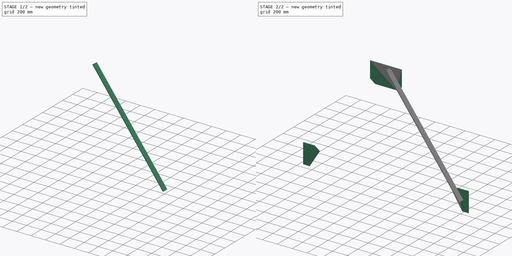
[diagram: build sequence overview — one tinted view per stage of 2, left to right]
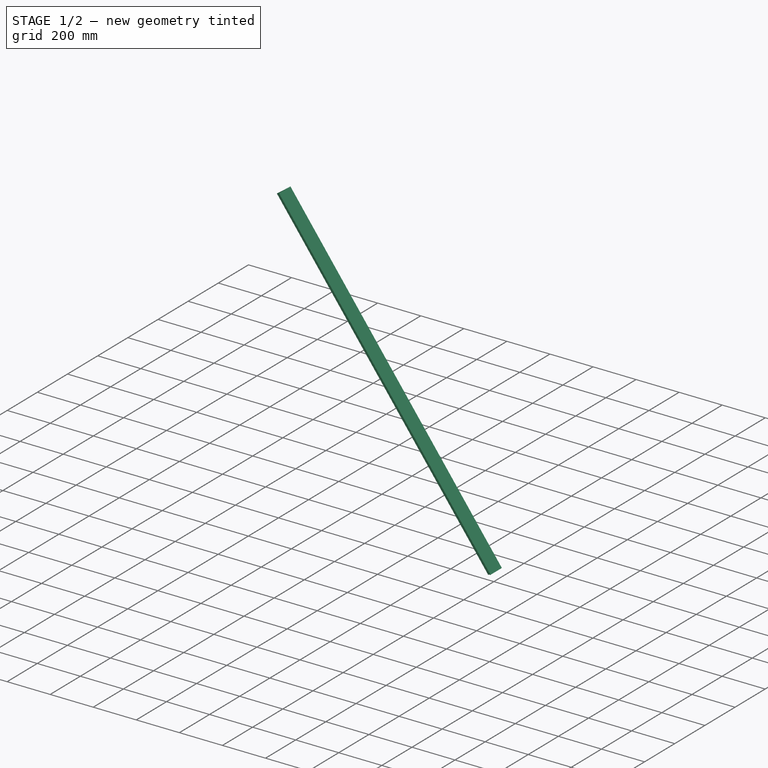
[diagram: stage 1 of 2 — iso view after this stage's code; geometry added in this stage tinted green]
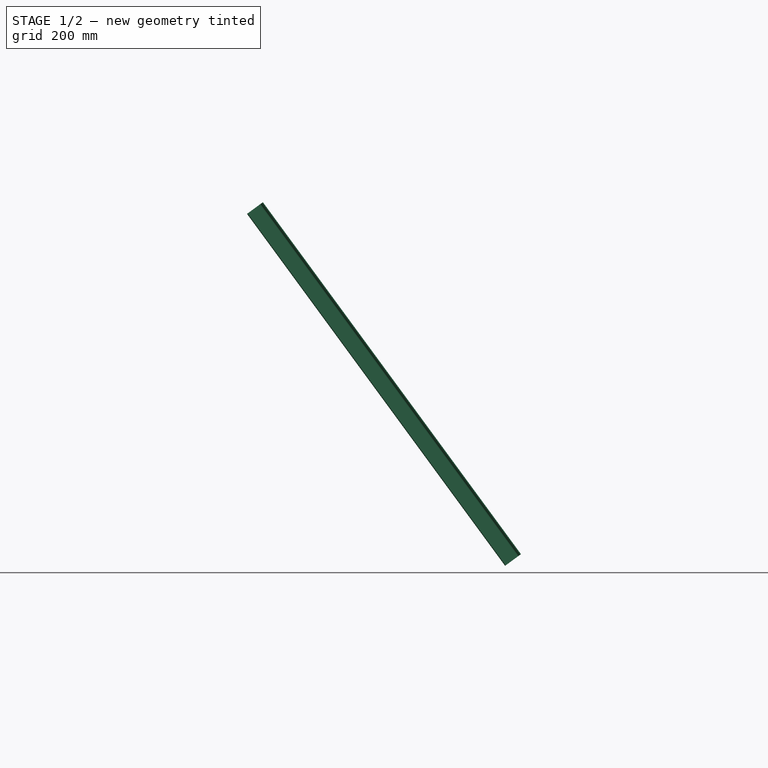
[diagram: stage 1 of 2 — front view after this stage's code; geometry added in this stage tinted green]
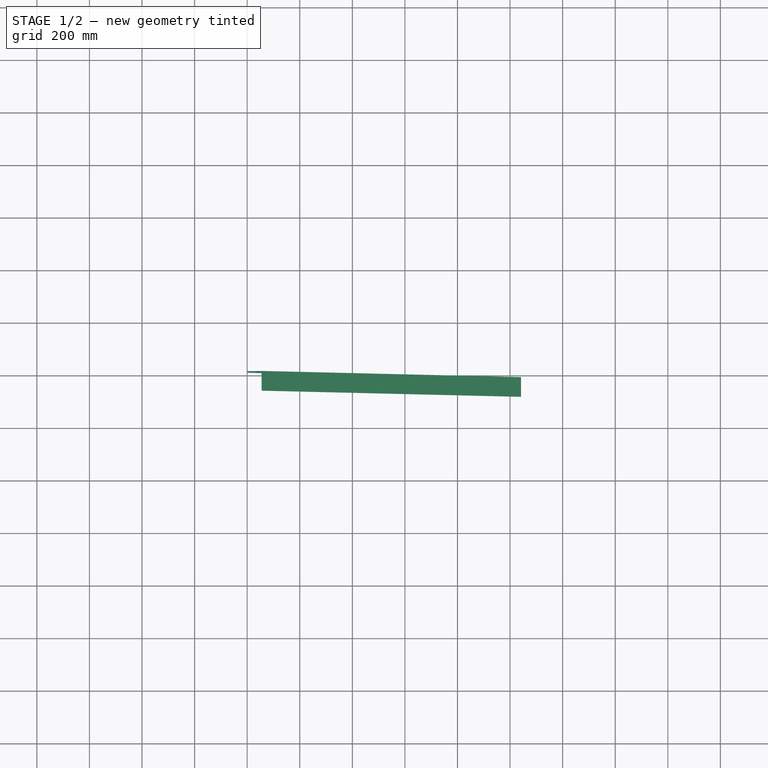
[diagram: stage 1 of 2 — top view after this stage's code; geometry added in this stage tinted green]
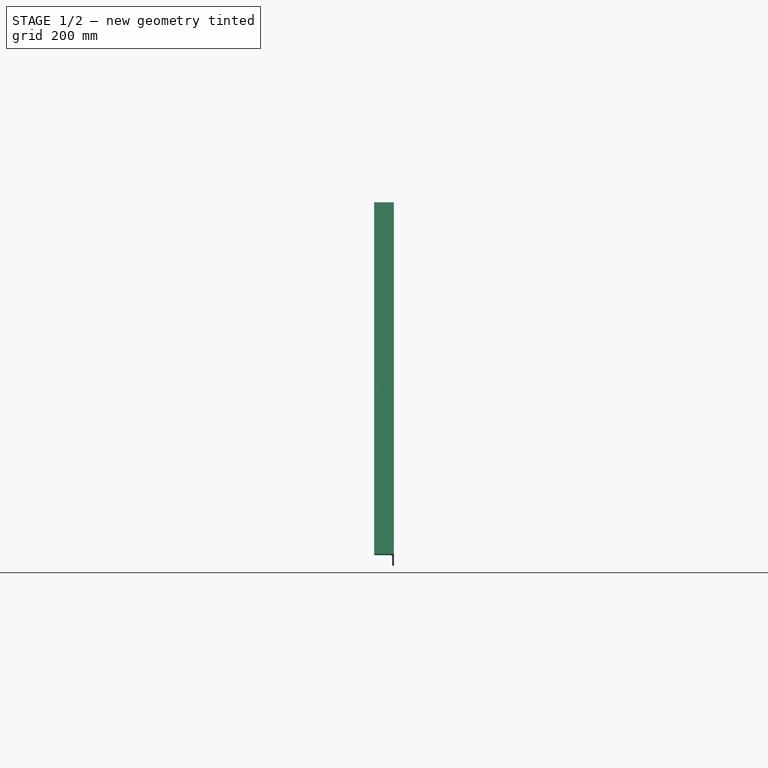
[diagram: stage 1 of 2 — right view after this stage's code; geometry added in this stage tinted green]
FCSTD DOCUMENT  (FreeCAD 0.21R33771 (Git))
Label: steelBrace03
License: All rights reserved
objects: Sketcher::SketchObject×1, Part::Extrusion×1, Part::FeaturePython×1, Spreadsheet::Sheet×1, Part::Mirroring×1, App::Part×1
note: 4 computed .brp shape members not serialized (recipe doc carries the construction recipe); baked Part::Feature solids carry a one-line shape summary decoded from their .brp

FEATURE [Part::FeaturePython] AngleSteel  # WARN: FeaturePython — macro-defined, semantics opaque (R4)
  A = 75
  B = 75
  L = 1660.11
  Placement = pos=(-1011.3,-43.5,120.961) rot=(0,1,0;0.632749rad)
  Solid = true
  g0 = 7.85
  mass = 11.3721
  sface = 0
  size = 10
  standard = SS_Equal
  t = 6
  expr: .Placement.Base.x = Spreadsheet.Lx
  expr: .Placement.Base.y = -Spreadsheet.B0 / 2 - 6
  expr: .Placement.Base.z = Spreadsheet.Ly
  expr: .Placement.Rotation.Angle = Spreadsheet.k0
  expr: L = Spreadsheet.LL - 200
FEATURE [Spreadsheet::Sheet] Spreadsheet  label="STB03"
  cells = A2='W0; B2(W0)=2200; A3='H0; B3(H0)=1500; A4='k0; B4(k0)==90 ° - atan(H0 / (W0 / 2)); A5='La; B5(La)=300; A6='Lb; B6(Lb)==La - 150; A7='LL; B7(LL)==sqrt((W0 / 2) ^ 2 + H0 ^ 2); A8='Lc; B8(Lc)=10; A9='Lx; B9(Lx)==-W0 / 2 + Lb * sin(k0); A10='Ly; B10(Ly)==Lb * cos(k0); A11='B0; B11(B0)=75; A13='20x20x3; B13=20; A14='25x25x3; B14=25; A15='30x30x3; B15=30; A16='30x30x5; B16=30; A17='40x40x3; B17=40; A18='40x40x5; B18=40; A19='50x50x4; B19=50; A20='50x50x6; B20=50; A21='65x65x8; B21=65; A22='65x65x9; B22=65; A23='75x75x6; B23=75; A24='75x75x9; B24=75; A25='75x75x12; B25=75; A26='90x90x7; B26=90; A27='90x90x10; B27=90; A28='90x90x13; B28=90; A29='100x100x7; B29=100; A30='100x100x10; B30=100; A31='100x100x13; B31=100; A32='130x130x9; B32=130; A33='130x130x12; B33=130; A34='130x130x15; B34=130; A35='150x150x12; B35=150; A36='150x150x15; B36=150; A37='150x150x19; B37=150; A38='200x200x15; B38=200; A39='200x200x20; B39=200; A40='200x200x25; B40=200
FEATURE [Part::Mirroring] Mirror  label="AngleSteel (mirrored)"
  Base = (0,-6,2000)
  Normal = (1,0,0)
  Source = -> AngleSteel
FEATURE [App::Part] Part  label="steelBrace03"
  Group = -> [AngleSteel,Mirror,Spreadsheet,Sketch,Extrude]
  Origin = -> Origin
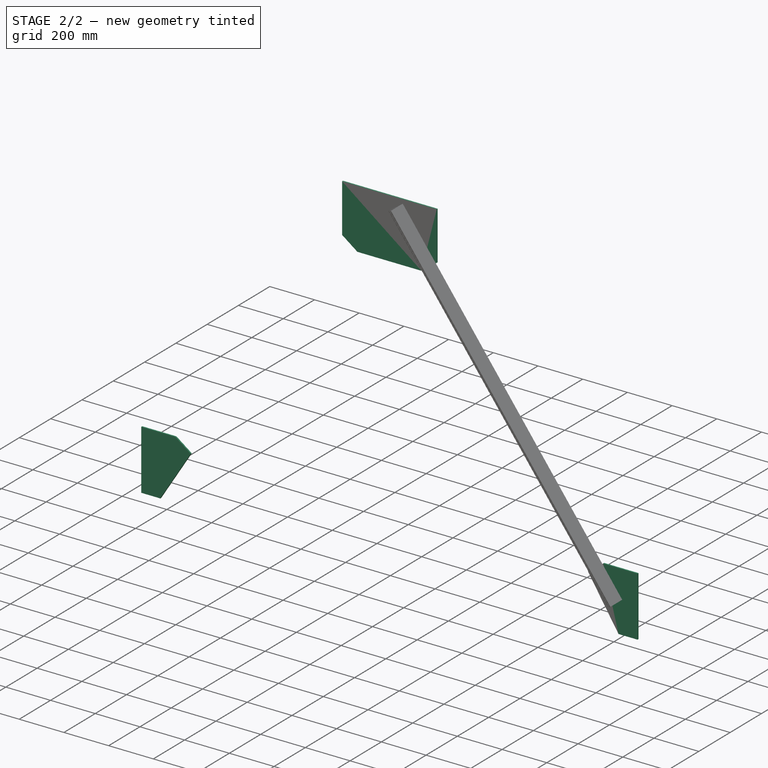
[diagram: stage 2 of 2 — iso view after this stage's code; geometry added in this stage tinted green]
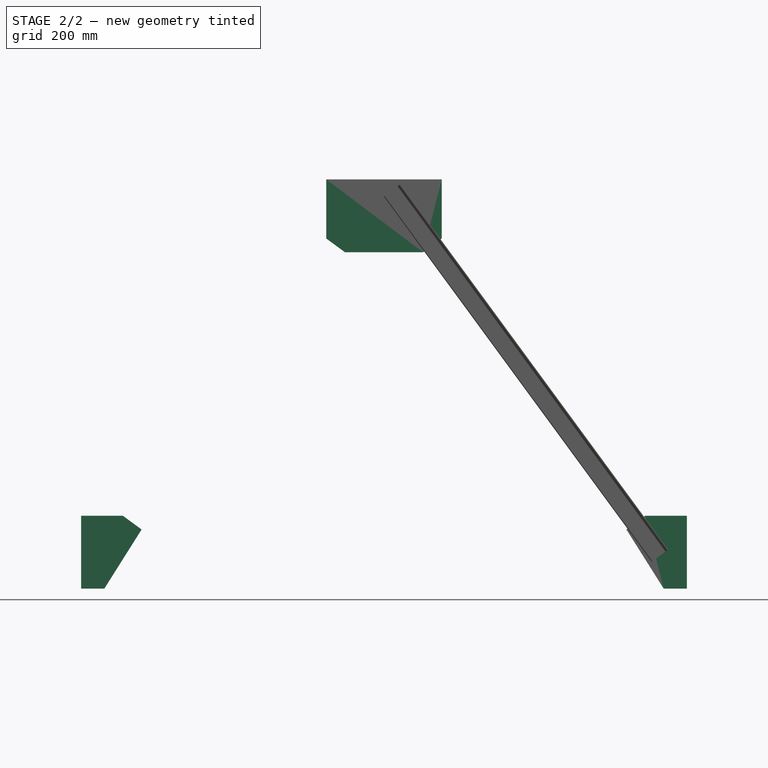
[diagram: stage 2 of 2 — front view after this stage's code; geometry added in this stage tinted green]
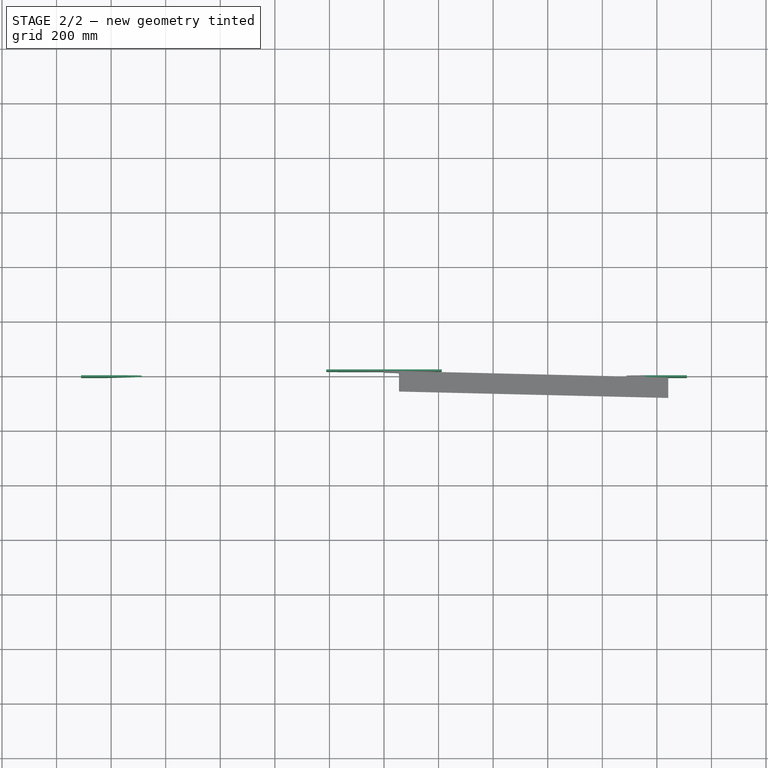
[diagram: stage 2 of 2 — top view after this stage's code; geometry added in this stage tinted green]
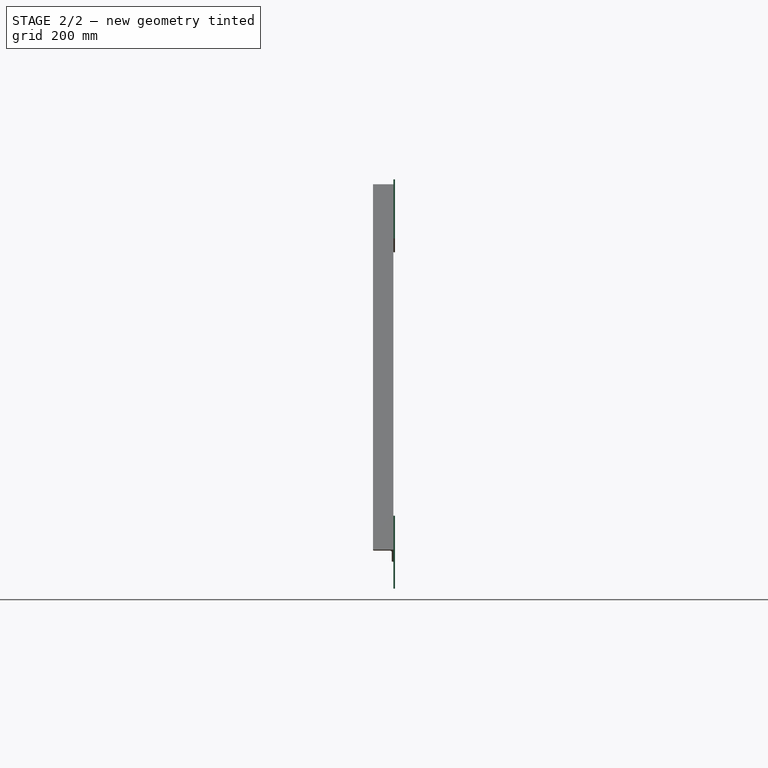
[diagram: stage 2 of 2 — right view after this stage's code; geometry added in this stage tinted green]
FEATURE [Sketcher::SketchObject] Sketch
  FullyConstrained = true
  MapMode = 5
  Placement = pos=(0,0,0) rot=(1,0,0;1.5708rad)
  expr: Constraints[22] = Spreadsheet.W0
  expr: Constraints[23] = Spreadsheet.H0
  expr: Constraints[25] = Spreadsheet.La
  expr: Constraints[28] = Spreadsheet.B0 + 10
  expr: Constraints[33] = Spreadsheet.B0 + 10
  expr: Constraints[35] = Spreadsheet.B0 + 10
  expr: Constraints[36] = Spreadsheet.La
  expr: Constraints[37] = Spreadsheet.La
  expr: Constraints[52] = Spreadsheet.Lc
  expr: Constraints[61] = Spreadsheet.Lc
  sketch-geometry (24):
    g0: LineSegment StartX=1100 StartY=0 StartZ=0 EndX=-1100 EndY=0 EndZ=0
    g1: GeomPoint X=0 Y=0 Z=0
    g2: LineSegment StartX=0 StartY=1500 StartZ=0 EndX=-1100 EndY=0 EndZ=0
    g3: LineSegment StartX=0 StartY=1500 StartZ=0 EndX=1100 EndY=0 EndZ=0
    g4: LineSegment StartX=-143.137 StartY=1232.95 StartZ=0 EndX=143.137 EndY=1232.95 EndZ=0
    g5: LineSegment StartX=211.681 StartY=1283.21 StartZ=0 EndX=211.681 EndY=1500 EndZ=0
    g6: LineSegment StartX=211.681 StartY=1500 StartZ=0 EndX=-211.681 EndY=1500 EndZ=0
    g7: LineSegment StartX=-211.681 StartY=1500 StartZ=0 EndX=-211.681 EndY=1283.21 EndZ=0
    g8: LineSegment StartX=-1100 StartY=0 StartZ=0 EndX=-1025 EndY=0 EndZ=0
    g9: LineSegment StartX=-956.863 StartY=267.054 StartZ=0 EndX=-1100 EndY=267.054 EndZ=0
    g10: LineSegment StartX=1100 StartY=0 StartZ=0 EndX=1025 EndY=0 EndZ=0
    g11: LineSegment StartX=956.863 StartY=267.054 StartZ=0 EndX=1100 EndY=267.054 EndZ=0
    g12: LineSegment StartX=143.137 StartY=1232.95 StartZ=0 EndX=211.681 EndY=1283.21 EndZ=0
    g13: LineSegment StartX=-143.137 StartY=1232.95 StartZ=0 EndX=-211.681 EndY=1283.21 EndZ=0
    g14: LineSegment StartX=956.863 StartY=267.054 StartZ=0 EndX=888.319 EndY=216.789 EndZ=0
    g15: LineSegment StartX=-956.863 StartY=267.054 StartZ=0 EndX=-888.319 EndY=216.789 EndZ=0
    g16: LineSegment StartX=888.319 StartY=216.789 StartZ=0 EndX=1025 EndY=0 EndZ=0
    g17: LineSegment StartX=-888.319 StartY=216.789 StartZ=0 EndX=-1025 EndY=0 EndZ=0
    g18: LineSegment StartX=-1100 StartY=0 StartZ=0 EndX=-1110 EndY=0 EndZ=0
    g19: LineSegment StartX=-1110 StartY=0 StartZ=0 EndX=-1110 EndY=267.054 EndZ=0
    g20: LineSegment StartX=-1100 StartY=267.054 StartZ=0 EndX=-1110 EndY=267.054 EndZ=0
    g21: LineSegment StartX=1100 StartY=0 StartZ=0 EndX=1110 EndY=0 EndZ=0
    g22: LineSegment StartX=1110 StartY=0 StartZ=0 EndX=1110 EndY=267.054 EndZ=0
    g23: LineSegment StartX=1110 StartY=267.054 StartZ=0 EndX=1100 EndY=267.054 EndZ=0
  constraints (62):
    c: Horizontal(g0)
    c: Coincident(g1,g-1)
    c: Coincident(g3,g2)
    c: Coincident(g5,g6)
    c: Coincident(g6,g7)
    c: Horizontal(g6)
    c: Vertical(g5)
    c: Vertical(g7)
    c: Horizontal(g8)
    c: Horizontal(g9)
    c: Coincident(g8,g0)
    c: Horizontal(g10)
    c: Horizontal(g11)
    c: Coincident(g10,g0)
    c: Coincident(g7,g13)
    c: Coincident(g5,g12)
    c: PointOnObject(g2,g-2)
    c: Coincident(g4,g12)
    c: Coincident(g4,g13)
    c: Symmetric(g4,g4,g-2)
    c: Coincident(g3,g10)
    c: Coincident(g2,g8)
    c: DistanceX(g0,g0) = 2200
    c: Distance(g2,g0) = 1500
    c: Symmetric(g6,g5,g2)
    c: Distance(g2,g12) = 300
    c: Symmetric(g5,g4,g3)
    c: Symmetric(g4,g7,g2)
    c: Distance(g13) = 85
    c: Coincident(g11,g14)
    c: Symmetric(g14,g11,g3)
    c: Coincident(g9,g15)
    c: Symmetric(g15,g9,g2)
    c: Distance(g15) = 85
    c: PointOnObject(g1,g0)
    c: Distance(g14) = 85
    c: Distance(g8,g15) = 300
    c: Distance(g10,g14) = 300
    c: Coincident(g8,g17)
    c: Coincident(g10,g16)
    c: Coincident(g16,g14)
    c: DistanceX(g10,g10) = 75
    c: DistanceX(g8,g8) = 75
    c: Coincident(g17,g15)
    c: Coincident(g8,g18)
    c: PointOnObject(g18,g-1)
    c: Coincident(g18,g19)
    c: Vertical(g19)
    c: Vertical(g8,g9)
    c: Coincident(g20,g9)
    c: Coincident(g20,g19)
    c: Horizontal(g20)
    c: DistanceX(g20,g20) = 10
    c: Coincident(g10,g21)
    c: PointOnObject(g21,g-1)
    c: Coincident(g21,g22)
    c: Vertical(g22)
    c: Coincident(g22,g23)
    c: Coincident(g23,g11)
    c: Horizontal(g23)
    c: Vertical(g10,g11)
    c: DistanceX(g23,g23) = 10
FEATURE [Part::Extrusion] Extrude  label="steelBrace"
  Base = -> Sketch
  Dir = (0,-1,2e-16)
  DirMode = 2
  FaceMakerClass = Part::FaceMakerBullseye
  LengthFwd = 6
  LengthRev = 0
  Solid = true
  Symmetric = false
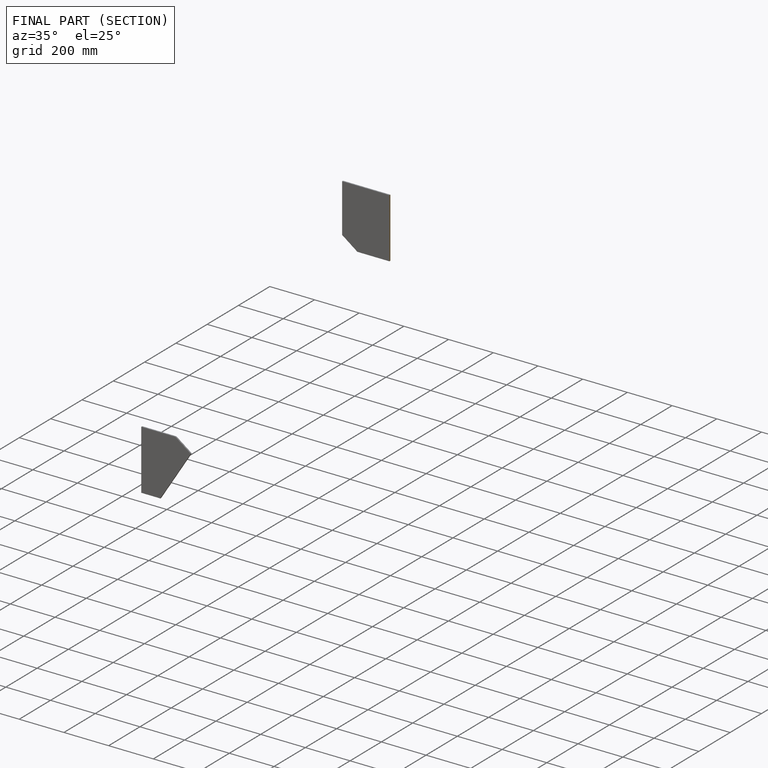
[diagram: finished part — half-section view (interior)]
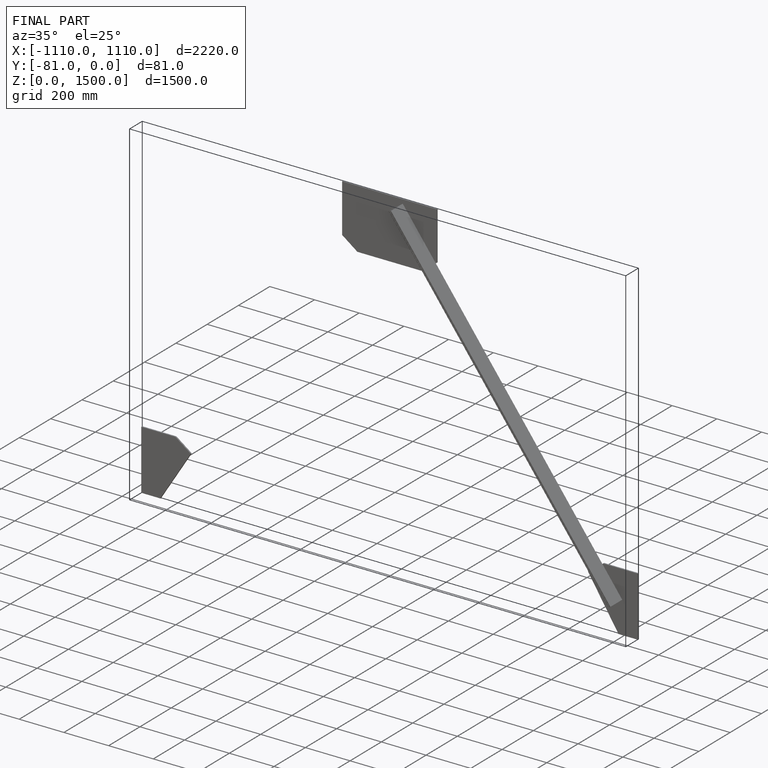
[diagram: finished part — iso view with bounding-box wireframe]
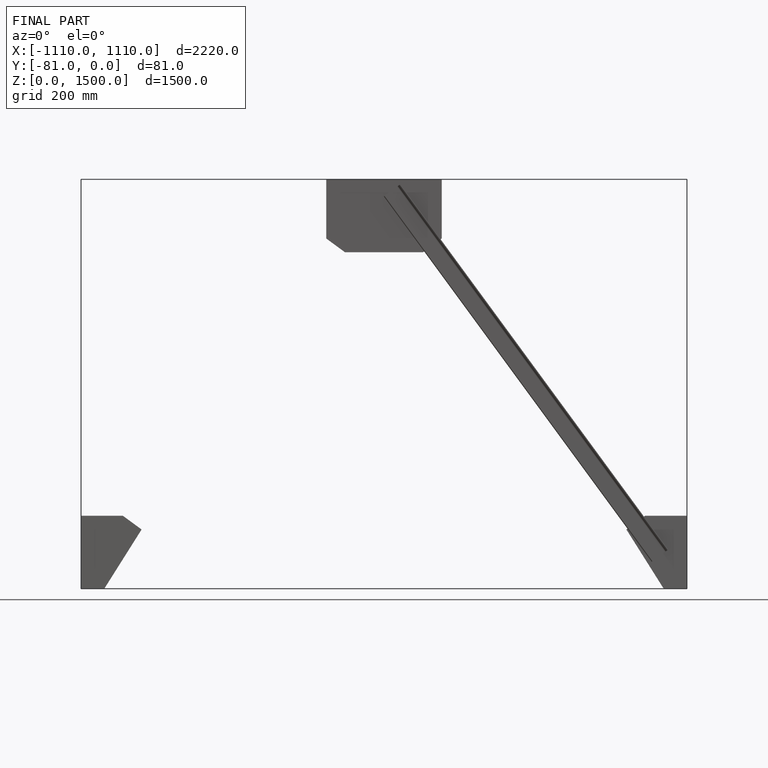
[diagram: finished part — front view with bounding-box wireframe]
